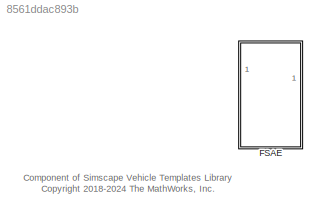
MODEL slx_8561ddac893b
KIND library
CONFIG AbsTol = auto
CONFIG EnableMultiTasking = off
CONFIG FixedStep = auto
CONFIG MaxStep = auto
CONFIG MinStep = auto
CONFIG RelTol = 1e-3
CONFIG SampleTimeConstraint = Unconstrained
CONFIG SolverName = VariableStepAuto
CONFIG StartTime = 0.0
CONFIG StopTime = 10.0
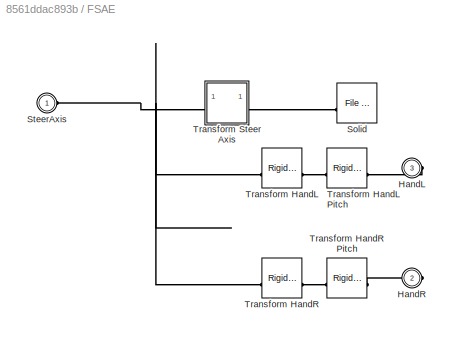
BLOCK [SubSystem] FSAE
BLOCK [PMIOPort] FSAE/HandL
  Port = 3
  Side = Right
BLOCK [PMIOPort] FSAE/HandR
  Port = 2
  Side = Right
BLOCK [Reference] FSAE/Solid  REF=sm_lib/Body Elements/File Solid
  SourceBlock = sm_lib/Body Elements/File Solid
  SourceType = File Solid
BLOCK [PMIOPort] FSAE/SteerAxis  
  Side = Left
BLOCK [Reference] FSAE/Transform HandL  REF=sm_lib/Frames and
Transforms/Rigid
Transform
  SourceBlock = sm_lib/Frames and\nTransforms/Rigid\nTransform
  SourceType = Rigid\nTransform
BLOCK [Reference] FSAE/Transform HandL Pitch  REF=sm_lib/Frames and
Transforms/Rigid
Transform
  SourceBlock = sm_lib/Frames and\nTransforms/Rigid\nTransform
  SourceType = Rigid\nTransform
BLOCK [Reference] FSAE/Transform HandR  REF=sm_lib/Frames and
Transforms/Rigid
Transform
  SourceBlock = sm_lib/Frames and\nTransforms/Rigid\nTransform
  SourceType = Rigid\nTransform
BLOCK [Reference] FSAE/Transform HandR Pitch  REF=sm_lib/Frames and
Transforms/Rigid
Transform
  SourceBlock = sm_lib/Frames and\nTransforms/Rigid\nTransform
  SourceType = Rigid\nTransform
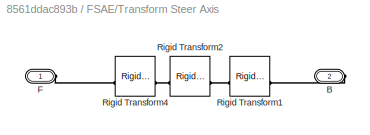
BLOCK [SubSystem] FSAE/Transform Steer Axis
BLOCK [PMIOPort] FSAE/Transform Steer Axis/B
  Port = 2
  Side = Right
BLOCK [PMIOPort] FSAE/Transform Steer Axis/F
  Side = Left
BLOCK [Reference] FSAE/Transform Steer Axis/Rigid Transform1  REF=sm_lib/Frames and
Transforms/Rigid
Transform
  SourceBlock = sm_lib/Frames and\nTransforms/Rigid\nTransform
  SourceType = Rigid\nTransform
BLOCK [Reference] FSAE/Transform Steer Axis/Rigid Transform2  REF=sm_lib/Frames and
Transforms/Rigid
Transform
  SourceBlock = sm_lib/Frames and\nTransforms/Rigid\nTransform
  SourceType = Rigid\nTransform
BLOCK [Reference] FSAE/Transform Steer Axis/Rigid Transform4  REF=sm_lib/Frames and
Transforms/Rigid
Transform
  SourceBlock = sm_lib/Frames and\nTransforms/Rigid\nTransform
  SourceType = Rigid\nTransform
ANNOTATION (root): Component of Simscape Vehicle Templates Library <copyright redacted>
PLINE FSAE/HandL:RConn1 -- FSAE/Transform HandL Pitch:RConn1
PLINE FSAE/HandR:RConn1 -- FSAE/Transform HandR Pitch:RConn1
PLINE FSAE/Solid:RConn1 -- FSAE/Transform Steer Axis:RConn1
PNET net1: FSAE/SteerAxis  :RConn1 -- FSAE/Transform HandL:LConn1 -- FSAE/Transform HandR:LConn1 -- FSAE/Transform Steer Axis:LConn1
PLINE FSAE/Transform HandL Pitch:LConn1 -- FSAE/Transform HandL:RConn1
PLINE FSAE/Transform HandR Pitch:LConn1 -- FSAE/Transform HandR:RConn1
PLINE FSAE/Transform Steer Axis/B:RConn1 -- FSAE/Transform Steer Axis/Rigid Transform1:RConn1
PLINE FSAE/Transform Steer Axis/F:RConn1 -- FSAE/Transform Steer Axis/Rigid Transform4:RConn1
PLINE FSAE/Transform Steer Axis/Rigid Transform1:LConn1 -- FSAE/Transform Steer Axis/Rigid Transform2:LConn1
PLINE FSAE/Transform Steer Axis/Rigid Transform2:RConn1 -- FSAE/Transform Steer Axis/Rigid Transform4:LConn1
note: PNET lines group multi-terminal physical nets as a canonical sorted terminal list (undirected conserving connections); 2-terminal nets keep the pairwise PLINE form
